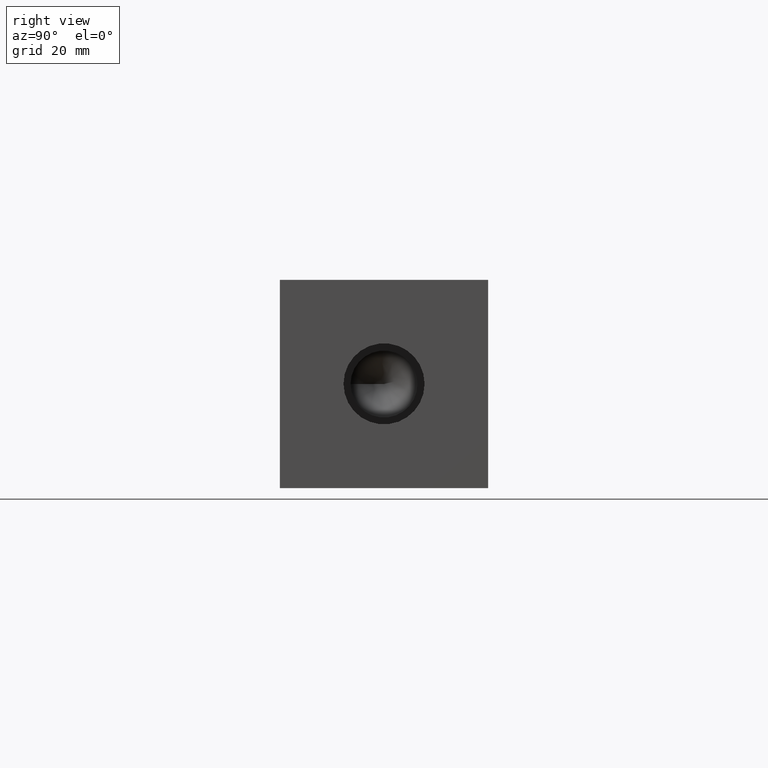
[diagram: clean part render]
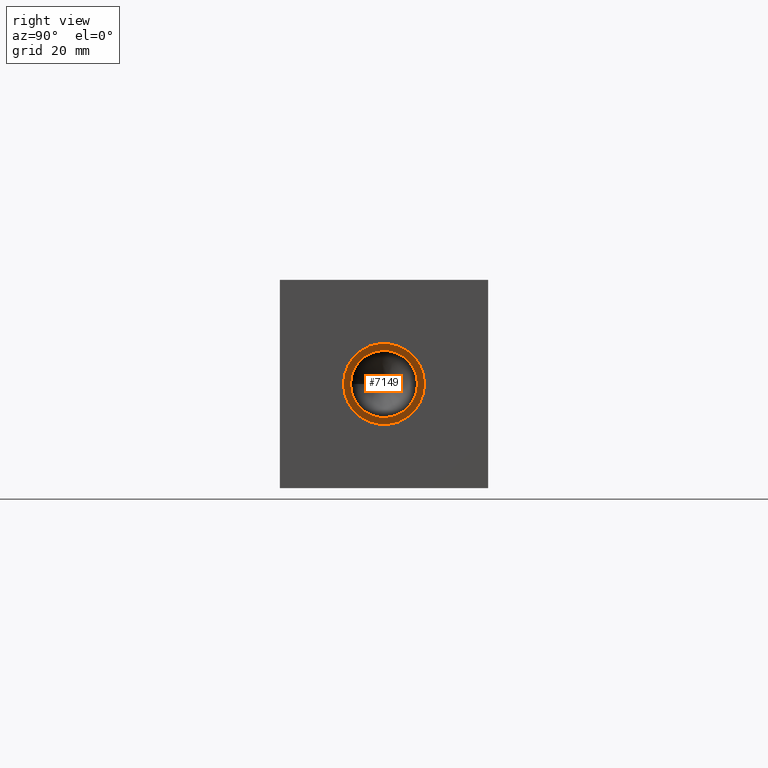
[diagram: same view with one face highlighted and labeled with its STEP entity id]
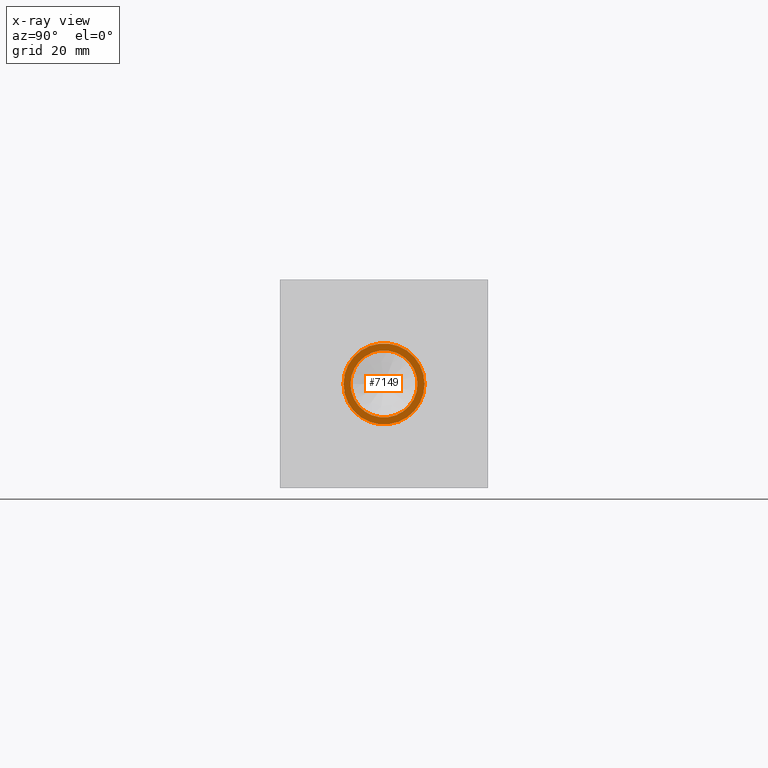
[diagram: x-ray of the same camera — body ghosted, the highlighted face saturated]
A machine part, right view. The second image highlights one B-rep face of the part: STEP entity #7149.
The next image is the same camera in x-ray: the body ghosted, the highlighted face saturated — about 0% of this face is hidden behind the body in this view.
In plain terms, the highlighted planar face has unit normal (1, 0, 0).
Its self-contained STEP definition (entity closure, byte-faithful):
#110=CIRCLE('',#7488,8.6487);
#111=CIRCLE('',#7489,8.6487);
#112=CIRCLE('',#7490,7.1501);
#162=FACE_BOUND('',#1155,.T.);
#395=PLANE('',#7487);
#752=FACE_OUTER_BOUND('',#1154,.T.);
#1154=EDGE_LOOP('',(#6318,#6319));
#1155=EDGE_LOOP('',(#6320));
#3431=VERTEX_POINT('',#12165);
#3432=VERTEX_POINT('',#12166);
#3433=VERTEX_POINT('',#12169);
#4404=EDGE_CURVE('',#3431,#3432,#110,.T.);
#4405=EDGE_CURVE('',#3432,#3431,#111,.T.);
#4406=EDGE_CURVE('',#3433,#3433,#112,.T.);
#6318=ORIENTED_EDGE('',*,*,#4404,.T.);
#6319=ORIENTED_EDGE('',*,*,#4405,.T.);
#6320=ORIENTED_EDGE('',*,*,#4406,.F.);
#7149=ADVANCED_FACE('',(#752,#162),#395,.T.);
#7487=AXIS2_PLACEMENT_3D('',#12164,#8824,#8825);
#7488=AXIS2_PLACEMENT_3D('',#12167,#8826,#8827);
#7489=AXIS2_PLACEMENT_3D('',#12168,#8828,#8829);
#7490=AXIS2_PLACEMENT_3D('',#12170,#8830,#8831);
#8824=DIRECTION('center_axis',(1.,0.,0.));
#8825=DIRECTION('ref_axis',(0.,1.,0.));
#8826=DIRECTION('center_axis',(1.,0.,0.));
#8827=DIRECTION('ref_axis',(0.,1.,0.));
#8828=DIRECTION('center_axis',(1.,0.,0.));
#8829=DIRECTION('ref_axis',(0.,1.,0.));
#8830=DIRECTION('center_axis',(1.,0.,0.));
#8831=DIRECTION('ref_axis',(0.,1.,0.));
#12164=CARTESIAN_POINT('Origin',(131.1402,22.225,22.225));
#12165=CARTESIAN_POINT('',(131.1402,30.8737,22.225));
#12166=CARTESIAN_POINT('',(131.1402,13.5763,22.225));
#12167=CARTESIAN_POINT('Origin',(131.1402,22.225,22.225));
#12168=CARTESIAN_POINT('Origin',(131.1402,22.225,22.225));
#12169=CARTESIAN_POINT('',(131.1402,15.0749,22.225));
#12170=CARTESIAN_POINT('Origin',(131.1402,22.225,22.225));